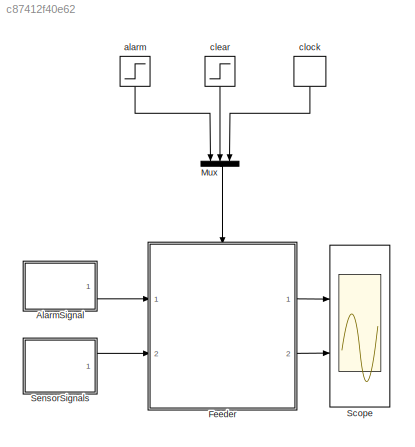
MODEL slx_c87412f40e62
KIND model
CONFIG AbsTol = auto
CONFIG EnableMultiTasking = on
CONFIG FixedStep = auto
CONFIG MaxStep = auto
CONFIG MinStep = auto
CONFIG RelTol = 1e-3
CONFIG SampleTimeConstraint = Unconstrained
CONFIG SolverName = ode45
CONFIG StartTime = 0.0
CONFIG StopTime = 100
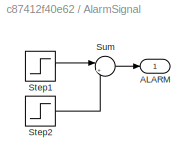
BLOCK [SubSystem] AlarmSignal
  Ports = [0, 1]
  RequestExecContextInheritance = off
BLOCK [Outport] AlarmSignal/ALARM
  VectorParamsAs1DForOutWhenUnconnected = off
BLOCK [Step] AlarmSignal/Step1
  SampleTime = 0
  Time = 45
BLOCK [Step] AlarmSignal/Step2
  After = -1
  SampleTime = 0
  Time = 80
BLOCK [Sum] AlarmSignal/Sum
  Inputs = |++
  Ports = [2, 1]
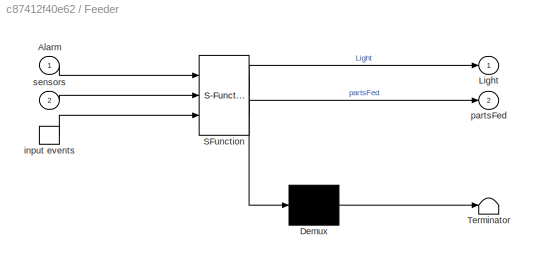
BLOCK [SubSystem] Feeder
  ErrorFcn = Stateflow.Translate.translate
  PermitHierarchicalResolution = ExplicitOnly
  Ports = [2, 2, 0, 1]
  RequestExecContextInheritance = off
  SFBlockType = Chart
  TreatAsAtomicUnit = on
BLOCK [Demux] Feeder/ Demux 
  Outputs = 1
  Ports = [1, 1]
BLOCK [S-Function] Feeder/ SFunction 
  EnableBusSupport = on
  FunctionName = sf_sfun
  Parameters = GREEN,ORANGE,RED
  PortCounts = [3 3]
  Ports = [3, 3]
  SFcnIsStateOwnerBlock = off
  SFunctionDeploymentMode = off
  Tag = Stateflow S-Function 3
BLOCK [Terminator] Feeder/ Terminator 
BLOCK [Inport] Feeder/Alarm
BLOCK [Outport] Feeder/Light
BLOCK [TriggerPort] Feeder/input events
  Ports = [0, 1]
  ShowOutputPort = on
  StatesWhenEnabling = held
  VariantControl = (inherit)
BLOCK [Outport] Feeder/partsFed
  Port = 2
BLOCK [Inport] Feeder/sensors
  Port = 2
BLOCK [Mux] Mux
  DisplayOption = bar
  Inputs = 3
  NameLocation = left
  Ports = [3, 1]
BLOCK [Scope] Scope
  Floating = off
  NumInputPorts = 2
  Ports = [2]
  ScopeSpecificationString = Simulink.scopes.TimeScopeBlockCfg('CurrentConfiguration', extmgr.ConfigurationSet(extmgr.Configuration('Core','General UI',true),extmgr.Configuration('Core','Source UI',true),extmgr.Configuration('Sources','WiredSimulink',true,'DataLoggingSaveFormat','StructureWithTime','DataLoggingLimitDataPoints',true,'DataLoggingDecimation','1','DataLoggingDecimateData',true),extmgr.Configuration('Visuals','Tim...<+2296ch>
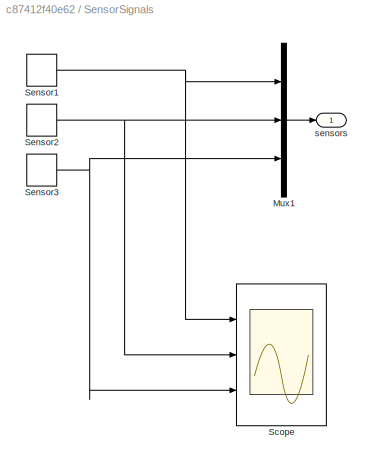
BLOCK [SubSystem] SensorSignals
  Ports = [0, 1]
  RequestExecContextInheritance = off
BLOCK [Mux] SensorSignals/Mux1
  DisplayOption = bar
  Inputs = 3
  Ports = [3, 1]
BLOCK [Scope] SensorSignals/Scope
  Floating = off
  NumInputPorts = 3
  Ports = [3]
  ScopeSpecificationString = Simulink.scopes.TimeScopeBlockCfg('CurrentConfiguration', extmgr.ConfigurationSet(extmgr.Configuration('Core','General UI',true),extmgr.Configuration('Core','Source UI',true),extmgr.Configuration('Sources','WiredSimulink',true,'DataLoggingVariableName','ScopeData1','DataLoggingSaveFormat','StructureWithTime','DataLoggingLimitDataPoints',true,'DataLoggingDecimation','1','DataLoggingDecimateData',tr...<+3099ch>
BLOCK [DiscretePulseGenerator] SensorSignals/Sensor1
  Amplitude = 5
  Period = 5
  Ports = [0, 1]
  PulseType = Time based
  PulseWidth = 50
  VectorParams1D = off
BLOCK [DiscretePulseGenerator] SensorSignals/Sensor2
  Amplitude = 5
  Period = 5
  Ports = [0, 1]
  PulseType = Time based
  PulseWidth = 80
  VectorParams1D = off
BLOCK [DiscretePulseGenerator] SensorSignals/Sensor3
  Amplitude = 5
  Period = 5
  Ports = [0, 1]
  PulseType = Time based
  PulseWidth = 50
  VectorParams1D = off
BLOCK [Outport] SensorSignals/sensors
  VectorParamsAs1DForOutWhenUnconnected = off
BLOCK [Step] alarm
  NameLocation = left
  SampleTime = 0
  Time = 45
BLOCK [Step] clear
  NameLocation = left
  SampleTime = 0
  Time = 80
BLOCK [DiscretePulseGenerator] clock
  NameLocation = left
  Period = 1
  Ports = [0, 1]
  PulseType = Time based
  PulseWidth = 5
LINE AlarmSignal/Step1:1 -> AlarmSignal/Sum:1
LINE AlarmSignal/Step2:1 -> AlarmSignal/Sum:2
LINE AlarmSignal/Sum:1 -> AlarmSignal/ALARM:1
LINE AlarmSignal:1 -> Feeder:1
LINE Feeder:1 -> Scope:1
LINE Feeder:2 -> Scope:2
LINE Mux:1 -> Feeder:trigger
LINE SensorSignals/Mux1:1 -> SensorSignals/sensors:1
NET SensorSignals/Sensor1:1 -> SensorSignals/Mux1:1, SensorSignals/Scope:1
NET SensorSignals/Sensor2:1 -> SensorSignals/Mux1:2, SensorSignals/Scope:2
NET SensorSignals/Sensor3:1 -> SensorSignals/Mux1:3, SensorSignals/Scope:3
LINE SensorSignals:1 -> Feeder:2
LINE alarm:1 -> Mux:1
LINE clear:1 -> Mux:2
LINE clock:1 -> Mux:3
note: NET lines group one-source signal fan-out (src -> all destinations, sorted); 1:1 wires keep LINE
CHART Feeder states=3 transitions=5
  STATE_LABEL 'InitializeSystem\nentry:\nLight = ORANGE;'
  STATE_LABEL 'FailState\nentry:\nLight = RED;'
  STATE_LABEL 'On\nentry:\nLight = GREEN;\npartsFed = 0;\nduring:\nif(any(sensors >= 2))\n    partsFed = partsFed + 1;\nend'
CHART  states=0 transitions=0
